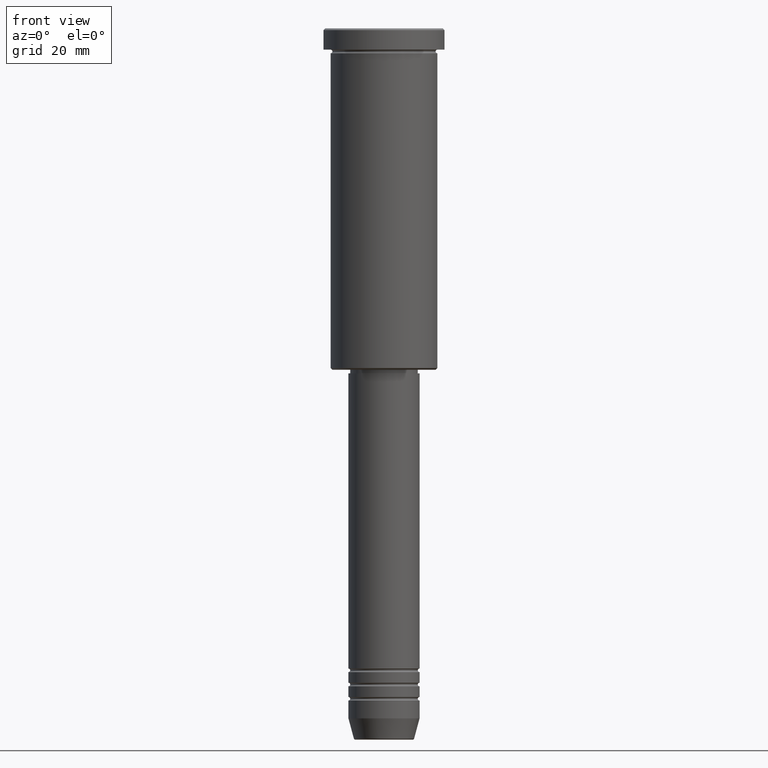
[diagram: clean part render]
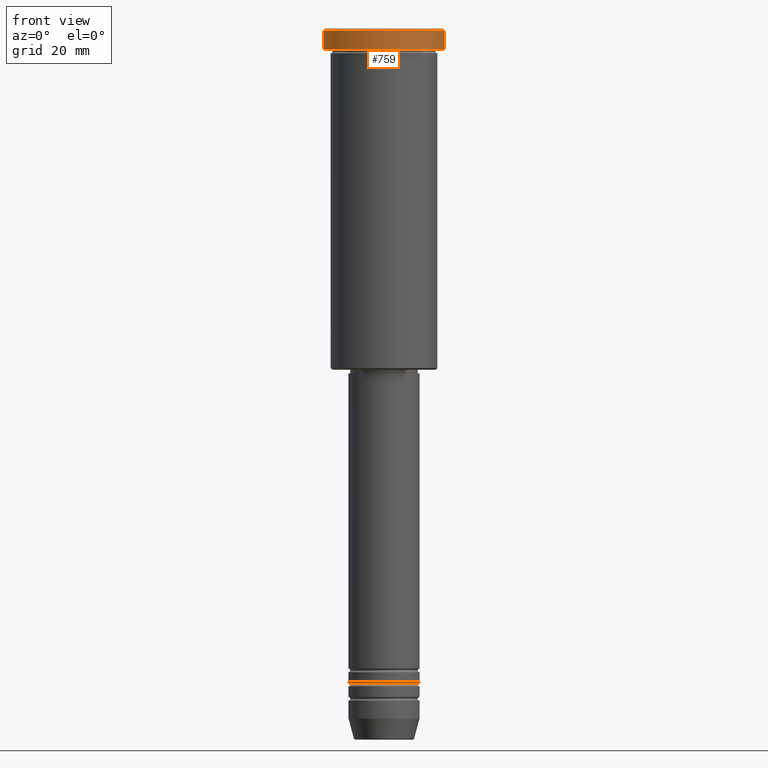
[diagram: same view with one face highlighted and labeled with its STEP entity id]
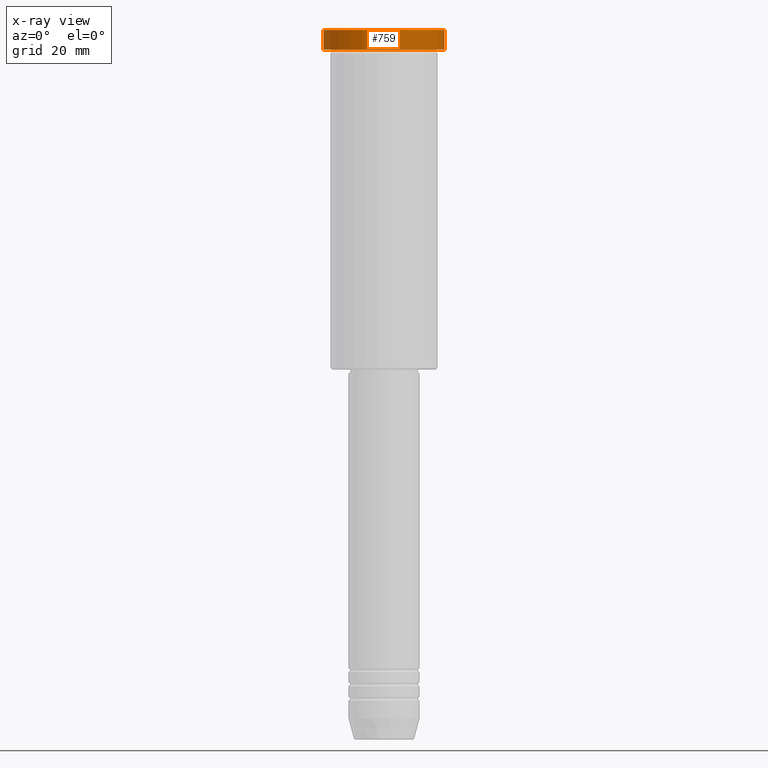
[diagram: x-ray of the same camera — body ghosted, the highlighted face saturated]
A machine part, front view. The second image highlights one B-rep face of the part: STEP entity #759.
The next image is the same camera in x-ray: the body ghosted, the highlighted face saturated — about 0% of this face is hidden behind the body in this view.
In plain terms, the highlighted cylindrical surface (partial cylindrical patch) has radius 17 mm, axis along (-0, -0, 1).
Its self-contained STEP definition (entity closure, byte-faithful):
#88 = FACE_OUTER_BOUND ( 'NONE', #1106, .T. ) ;
#199 = VERTEX_POINT ( 'NONE', #991 ) ;
#256 = EDGE_CURVE ( 'NONE', #888, #316, #1178, .T. ) ;
#259 = CARTESIAN_POINT ( 'NONE',  ( 0.000000000000000000, 0.000000000000000000, -5.999999999999994671 ) ) ;
#268 = CARTESIAN_POINT ( 'NONE',  ( 17.00000000000000000, 0.000000000000000000, 0.000000000000000000 ) ) ;
#273 = CARTESIAN_POINT ( 'NONE',  ( -17.00000000000000000, 2.081899558550500280E-15, 0.000000000000000000 ) ) ;
#316 = VERTEX_POINT ( 'NONE', #952 ) ;
#325 = ORIENTED_EDGE ( 'NONE', *, *, #543, .T. ) ;
#332 = DIRECTION ( 'NONE',  ( 1.000000000000000000, 0.000000000000000000, 0.000000000000000000 ) ) ;
#387 = EDGE_CURVE ( 'NONE', #199, #316, #480, .T. ) ;
#391 = CYLINDRICAL_SURFACE ( 'NONE', #679, 17.00000000000000000 ) ;
#477 = DIRECTION ( 'NONE',  ( -0.000000000000000000, -0.000000000000000000, 1.000000000000000000 ) ) ;
#480 = CIRCLE ( 'NONE', #901, 17.00000000000000000 ) ;
#488 = CARTESIAN_POINT ( 'NONE',  ( 0.000000000000000000, 0.000000000000000000, 0.000000000000000000 ) ) ;
#496 = VECTOR ( 'NONE', #1004, 1000.000000000000000 ) ;
#543 = EDGE_CURVE ( 'NONE', #888, #960, #885, .T. ) ;
#568 = CARTESIAN_POINT ( 'NONE',  ( 0.000000000000000000, 0.000000000000000000, -0.5000000000000213163 ) ) ;
#679 = AXIS2_PLACEMENT_3D ( 'NONE', #488, #477, #1112 ) ;
#707 = EDGE_CURVE ( 'NONE', #960, #199, #1075, .T. ) ;
#745 = ORIENTED_EDGE ( 'NONE', *, *, #387, .T. ) ;
#754 = CARTESIAN_POINT ( 'NONE',  ( -17.00000000000000000, 2.081899558550500280E-15, -5.999999999999994671 ) ) ;
#759 = ADVANCED_FACE ( 'NONE', ( #88 ), #391, .T. ) ;
#803 = VECTOR ( 'NONE', #1097, 1000.000000000000000 ) ;
#863 = DIRECTION ( 'NONE',  ( -0.000000000000000000, -0.000000000000000000, 1.000000000000000000 ) ) ;
#876 = ORIENTED_EDGE ( 'NONE', *, *, #256, .F. ) ;
#885 = CIRCLE ( 'NONE', #1055, 17.00000000000000000 ) ;
#888 = VERTEX_POINT ( 'NONE', #754 ) ;
#901 = AXIS2_PLACEMENT_3D ( 'NONE', #568, #1117, #1035 ) ;
#952 = CARTESIAN_POINT ( 'NONE',  ( -17.00000000000000000, 2.081899558550500280E-15, -0.5000000000000213163 ) ) ;
#960 = VERTEX_POINT ( 'NONE', #971 ) ;
#971 = CARTESIAN_POINT ( 'NONE',  ( 17.00000000000000000, 0.000000000000000000, -5.999999999999994671 ) ) ;
#991 = CARTESIAN_POINT ( 'NONE',  ( 17.00000000000000000, 0.000000000000000000, -0.5000000000000213163 ) ) ;
#1004 = DIRECTION ( 'NONE',  ( -0.000000000000000000, -0.000000000000000000, 1.000000000000000000 ) ) ;
#1030 = ORIENTED_EDGE ( 'NONE', *, *, #707, .T. ) ;
#1035 = DIRECTION ( 'NONE',  ( 1.000000000000000000, 0.000000000000000000, 0.000000000000000000 ) ) ;
#1055 = AXIS2_PLACEMENT_3D ( 'NONE', #259, #863, #332 ) ;
#1075 = LINE ( 'NONE', #268, #496 ) ;
#1097 = DIRECTION ( 'NONE',  ( -0.000000000000000000, -0.000000000000000000, 1.000000000000000000 ) ) ;
#1106 = EDGE_LOOP ( 'NONE', ( #876, #325, #1030, #745 ) ) ;
#1112 = DIRECTION ( 'NONE',  ( 1.000000000000000000, 0.000000000000000000, 0.000000000000000000 ) ) ;
#1117 = DIRECTION ( 'NONE',  ( 0.000000000000000000, 0.000000000000000000, -1.000000000000000000 ) ) ;
#1178 = LINE ( 'NONE', #273, #803 ) ;